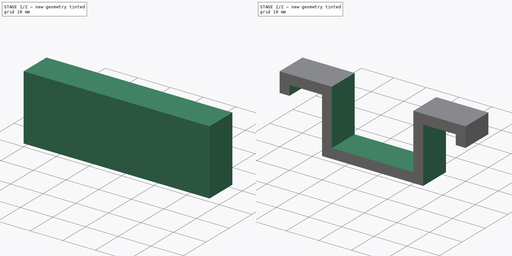
[diagram: build sequence overview — one tinted view per stage of 2, left to right]
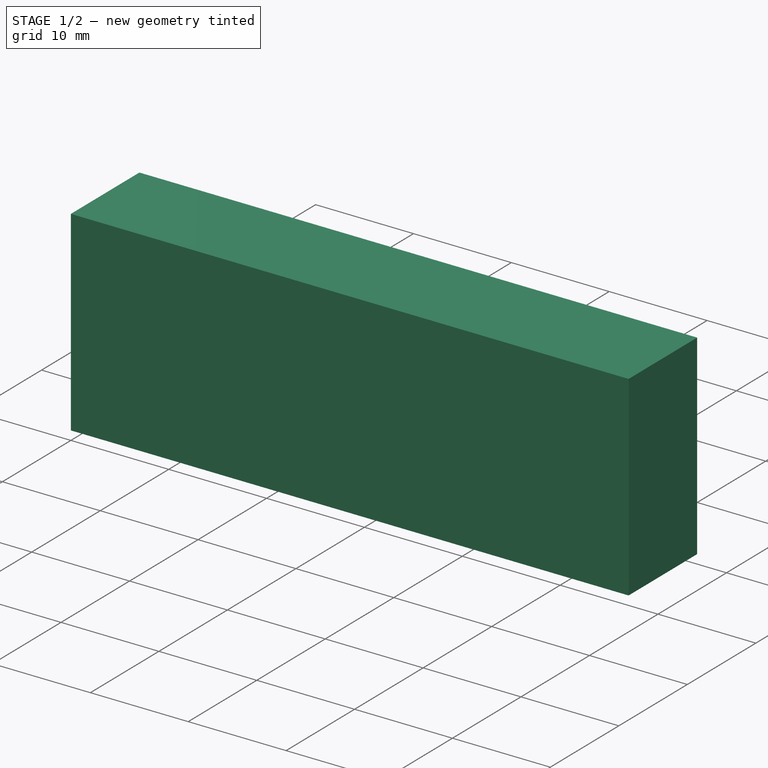
[diagram: stage 1 of 2 — iso view after this stage's code; geometry added in this stage tinted green]
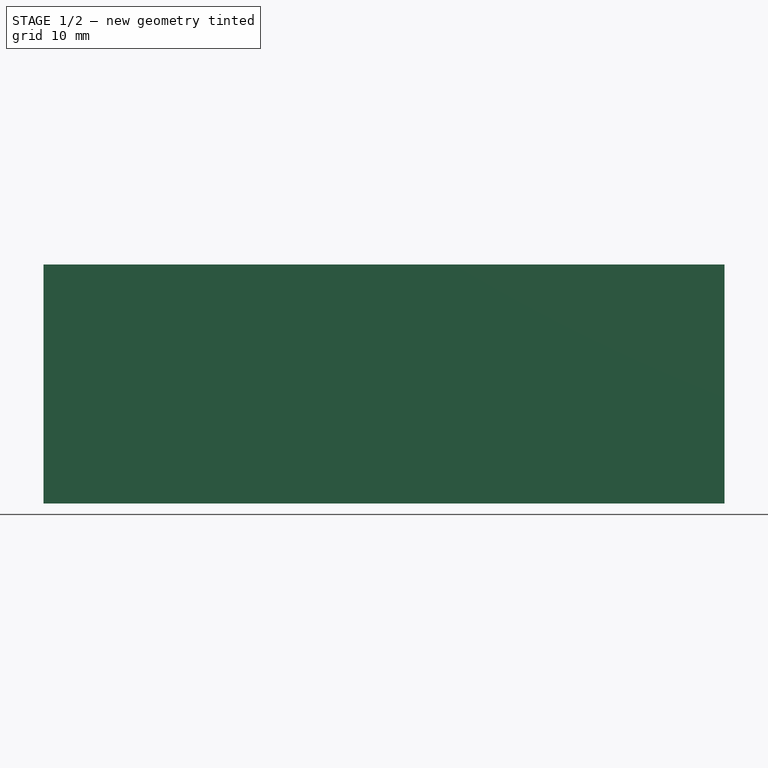
[diagram: stage 1 of 2 — front view after this stage's code; geometry added in this stage tinted green]
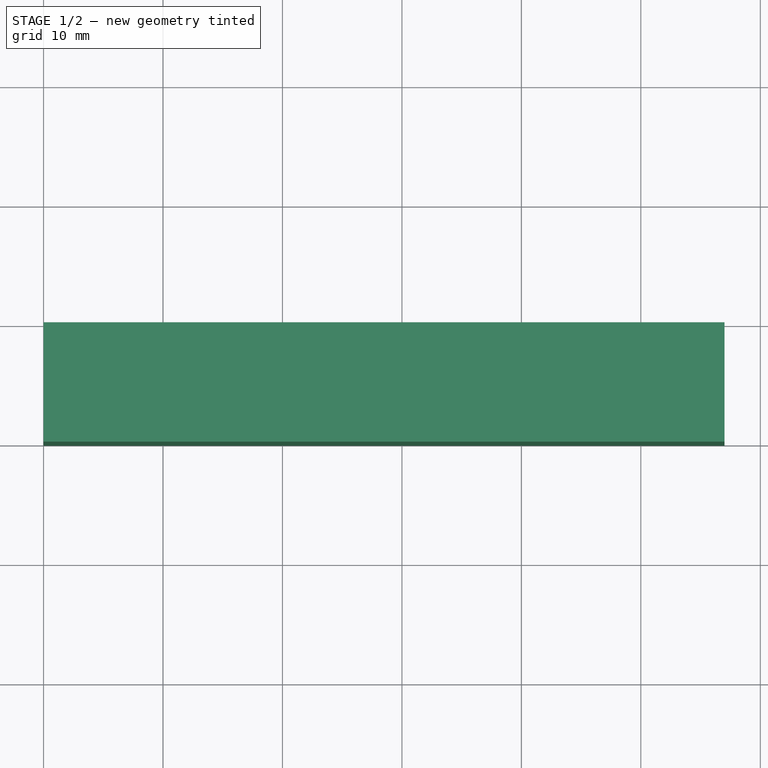
[diagram: stage 1 of 2 — top view after this stage's code; geometry added in this stage tinted green]
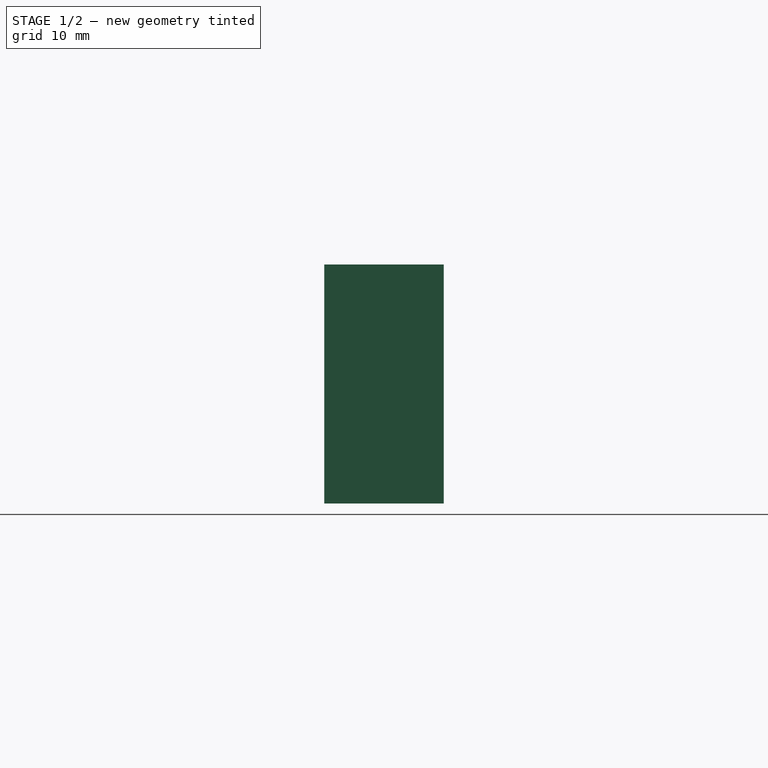
[diagram: stage 1 of 2 — right view after this stage's code; geometry added in this stage tinted green]
FCSTD DOCUMENT  (FreeCAD 1.0R39285 (Git))
Label: FuselageWingConnector
License: All rights reserved
LicenseURL: https://en.wikipedia.org/wiki/All_rights_reserved
objects: Sketcher::SketchObject×2, PartDesign::Pad×1, PartDesign::Pocket×1, PartDesign::Body×1
note: 11 computed .brp shape members not serialized (recipe doc carries the construction recipe); baked Part::Feature solids carry a one-line shape summary decoded from their .brp

FEATURE [Sketcher::SketchObject] Sketch
  ArcFitTolerance = 1e-06
  AttachmentSupport = -> [XZ_Plane]
  FullyConstrained = true
  MakeInternals = false
  MapMode = 5
  Placement = pos=(0,0,0) rot=(1,0,0;1.5708rad)
  sketch-geometry (4):
    g0: LineSegment StartX=0 StartY=0 StartZ=0 EndX=57 EndY=0 EndZ=0
    g1: LineSegment StartX=57 StartY=0 StartZ=0 EndX=57 EndY=20 EndZ=0
    g2: LineSegment StartX=57 StartY=20 StartZ=0 EndX=0 EndY=20 EndZ=0
    g3: LineSegment StartX=0 StartY=20 StartZ=0 EndX=0 EndY=0 EndZ=0
  constraints (11):
    c: Coincident(g0,g1)
    c: Coincident(g1,g2)
    c: Coincident(g2,g3)
    c: Coincident(g3,g0)
    c: Horizontal(g0)
    c: Horizontal(g2)
    c: Vertical(g1)
    c: Vertical(g3)
    c: Distance(g1,g3) = 57
    c: Distance(g0,g2) = 20
    c: Coincident(g0,g-1)
FEATURE [PartDesign::Pad] Pad
  Direction = (0,-1,2e-16)
  Length = 10
  Length2 = 10
  Placement = pos=(0,0,0) rot=(1,0,0;1.5708rad)
  Profile = -> Sketch
  ReferenceAxis = -> Sketch [N_Axis]
  Refine = true
  Suppressed = false
  Type = 0
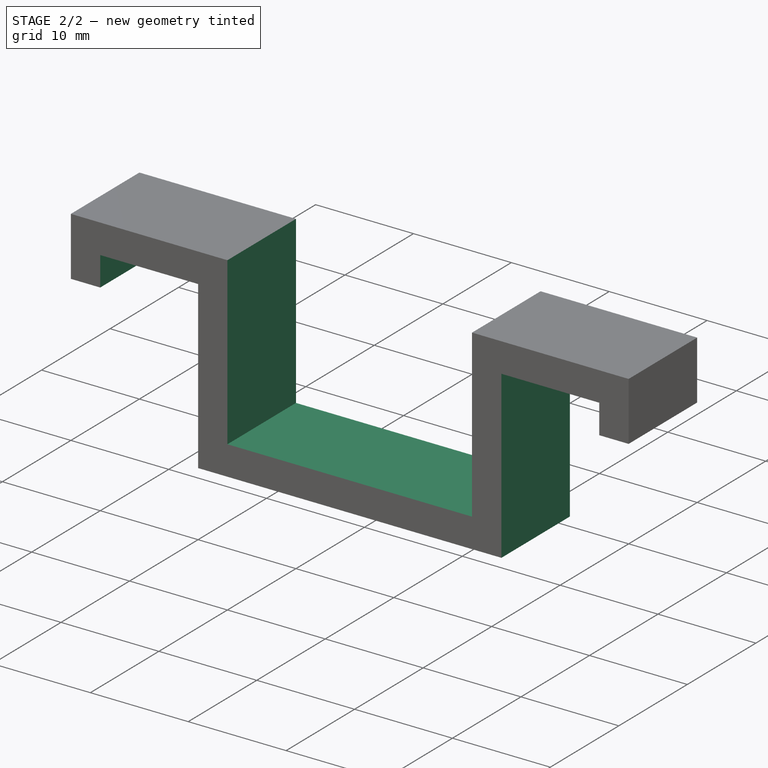
[diagram: stage 2 of 2 — iso view after this stage's code; geometry added in this stage tinted green]
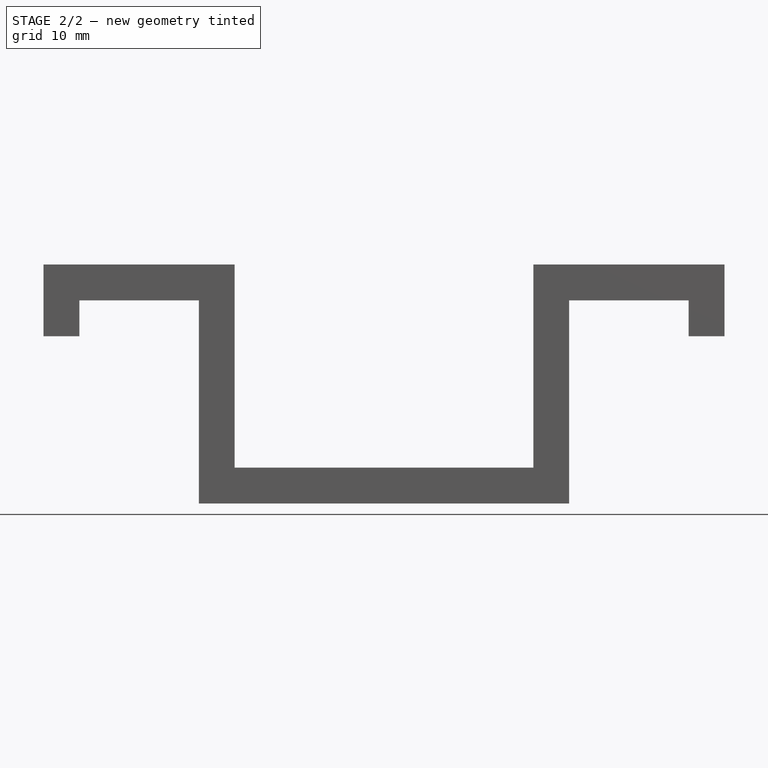
[diagram: stage 2 of 2 — front view after this stage's code; geometry added in this stage tinted green]
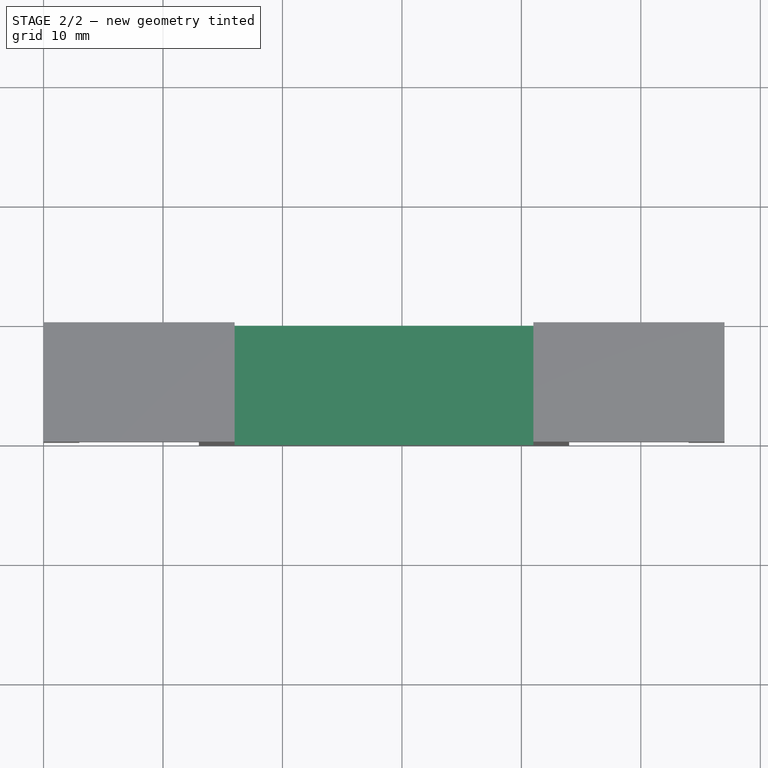
[diagram: stage 2 of 2 — top view after this stage's code; geometry added in this stage tinted green]
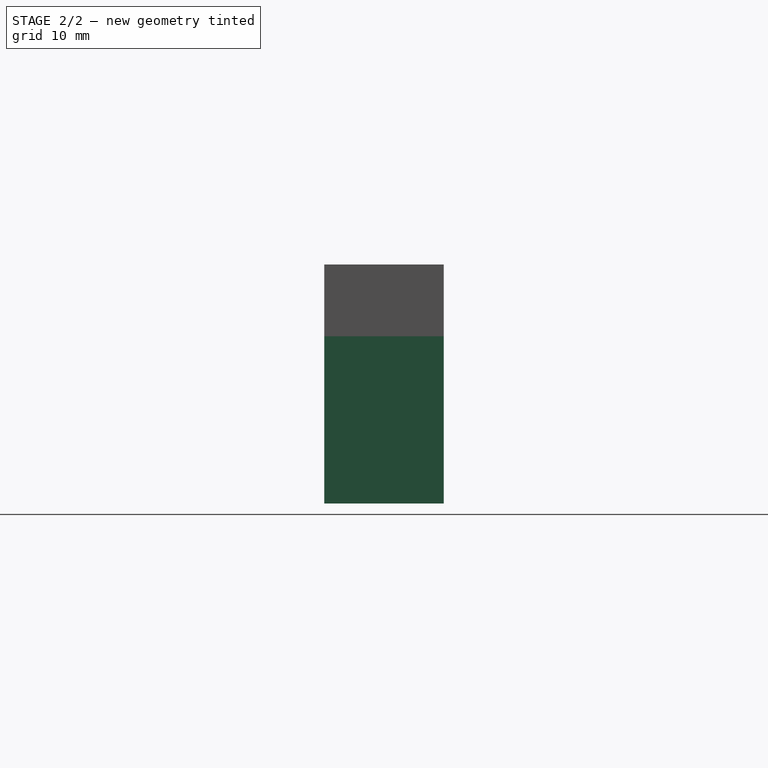
[diagram: stage 2 of 2 — right view after this stage's code; geometry added in this stage tinted green]
FEATURE [Sketcher::SketchObject] Sketch001
  ArcFitTolerance = 1e-06
  AttachmentSupport = -> [Pad]
  ExternalGeometry = -> [Pad]
  FullyConstrained = true
  MakeInternals = false
  MapMode = 5
  Placement = pos=(0,-10,0) rot=(1,0,0;1.5708rad)
  sketch-geometry (20):
    g0: LineSegment StartX=3 StartY=17 StartZ=0 EndX=3 EndY=3.6e-15 EndZ=0
    g1: LineSegment StartX=3 StartY=2.2e-15 StartZ=0 EndX=13 EndY=2.2e-15 EndZ=0
    g2: LineSegment StartX=13 StartY=2.2e-15 StartZ=0 EndX=13 EndY=17 EndZ=0
    g3: LineSegment StartX=13 StartY=17 StartZ=0 EndX=3 EndY=17 EndZ=0
    g4: LineSegment StartX=0 StartY=14 StartZ=0 EndX=0 EndY=1.8e-15 EndZ=0
    g5: LineSegment StartX=0 StartY=2.2e-15 StartZ=0 EndX=3 EndY=2.2e-15 EndZ=0
    g6: LineSegment StartX=3 StartY=2.2e-15 StartZ=0 EndX=3 EndY=14 EndZ=0
    g7: LineSegment StartX=3 StartY=14 StartZ=0 EndX=0 EndY=14 EndZ=0
    g8: LineSegment StartX=16 StartY=20 StartZ=0 EndX=16 EndY=3 EndZ=0
    g9: LineSegment StartX=16 StartY=3 StartZ=0 EndX=41 EndY=3 EndZ=0
    g10: LineSegment StartX=41 StartY=3 StartZ=0 EndX=41 EndY=20 EndZ=0
    g11: LineSegment StartX=41 StartY=20 StartZ=0 EndX=16 EndY=20 EndZ=0
    g12: LineSegment StartX=44 StartY=2.2e-15 StartZ=0 EndX=54 EndY=2.2e-15 EndZ=0
    g13: LineSegment StartX=54 StartY=2.2e-15 StartZ=0 EndX=54 EndY=17 EndZ=0
    g14: LineSegment StartX=54 StartY=17 StartZ=0 EndX=44 EndY=17 EndZ=0
    g15: LineSegment StartX=44 StartY=17 StartZ=0 EndX=44 EndY=3.6e-15 EndZ=0
    g16: LineSegment StartX=54 StartY=14 StartZ=0 EndX=54 EndY=3.6e-15 EndZ=0
    g17: LineSegment StartX=54 StartY=3.6e-15 StartZ=0 EndX=57 EndY=3.6e-15 EndZ=0
    g18: LineSegment StartX=57 StartY=3.6e-15 StartZ=0 EndX=57 EndY=14 EndZ=0
    g19: LineSegment StartX=57 StartY=14 StartZ=0 EndX=54 EndY=14 EndZ=0
  constraints (58):
    c: Coincident(g0,g1)
    c: Coincident(g1,g2)
    c: Coincident(g2,g3)
    c: Coincident(g3,g0)
    c: Vertical(g0)
    c: Vertical(g2)
    c: Horizontal(g1)
    c: Horizontal(g3)
    c: PointOnObject(g1,g-5)
    c: Distance(g1,g1) = 10
    c: Distance(g-6,g0) = 3
    c: Coincident(g4,g5)
    c: Coincident(g5,g6)
    c: Coincident(g6,g7)
    c: Coincident(g7,g4)
    c: Vertical(g4)
    c: Vertical(g6)
    c: Horizontal(g5)
    c: Horizontal(g7)
    c: PointOnObject(g4,g-6)
    c: Coincident(g5,g0)
    c: Coincident(g8,g9)
    c: Coincident(g9,g10)
    c: Coincident(g10,g11)
    c: Coincident(g11,g8)
    c: Vertical(g8)
    c: Vertical(g10)
    c: Horizontal(g9)
    c: Horizontal(g11)
    c: PointOnObject(g8,g-3)
    c: Distance(g-5,g9) = 3
    c: DistanceX(g9,g9) = 25
    c: Distance(g2,g8) = 3
    c: Coincident(g12,g13)
    c: Coincident(g13,g14)
    c: Coincident(g14,g15)
    c: Coincident(g15,g12)
    c: Horizontal(g12)
    c: Horizontal(g14)
    c: Vertical(g13)
    c: Vertical(g15)
    c: PointOnObject(g12,g-5)
    c: Distance(g10,g15) = 3
    c: Coincident(g16,g17)
    c: Coincident(g17,g18)
    c: Coincident(g18,g19)
    c: Coincident(g19,g16)
    c: Vertical(g16)
    c: Vertical(g18)
    c: Horizontal(g17)
    c: Horizontal(g19)
    c: PointOnObject(g16,g13)
    c: Coincident(g17,g-5)
    c: DistanceX(g19,g19) = 3
    c: Distance(g13,g19) = 3
    c: Distance(g-3,g3) = 3
    c: Distance(g0,g7) = 3
    c: Distance(g-3,g14) = 3
FEATURE [PartDesign::Pocket] Pocket
  BaseFeature = -> Pad
  Direction = (0,1,-2e-16)
  Length = 0
  Length2 = 5
  Placement = pos=(0,0,0) rot=(1,0,0;1.5708rad)
  Profile = -> Sketch001
  ReferenceAxis = -> Sketch001 [N_Axis]
  Refine = true
  Suppressed = false
  Type = 3
  UpToFace = -> Pad [Face5]
FEATURE [PartDesign::Body] Body
  AllowCompound = false
  Group = -> [Sketch,Pad,Sketch001,Pocket]
  Origin = -> Origin
  Tip = -> Pocket
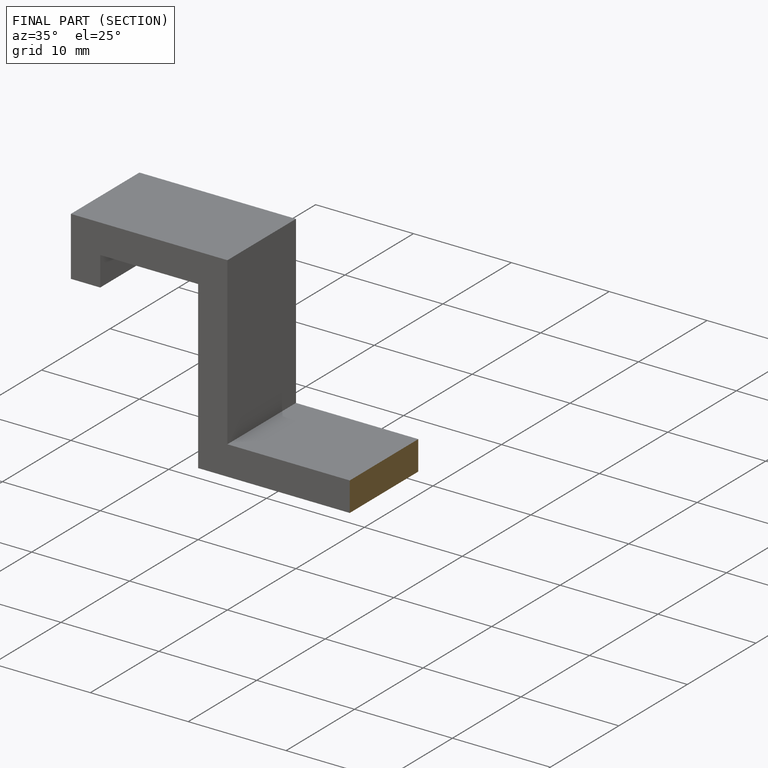
[diagram: finished part — half-section view (interior)]
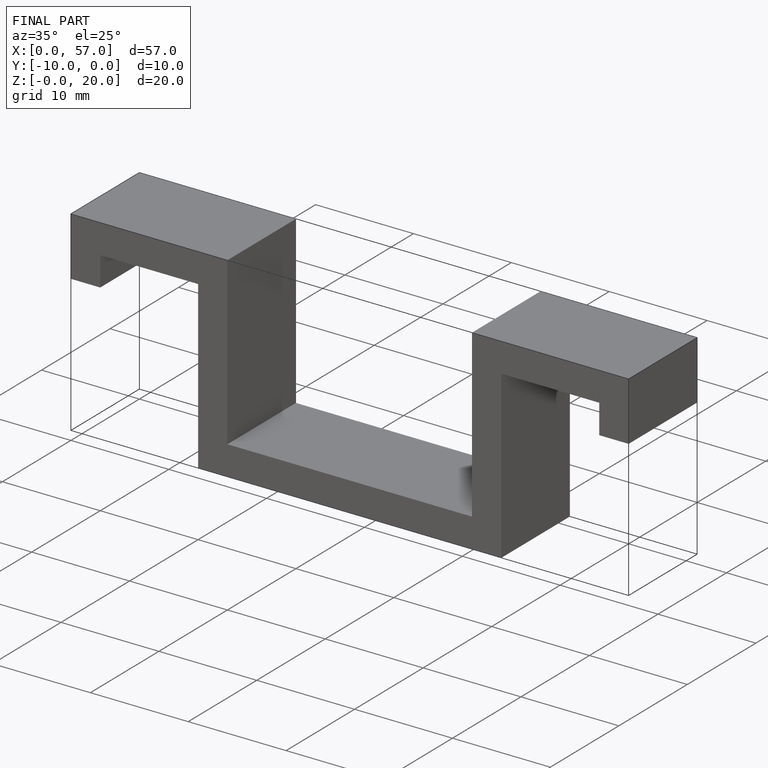
[diagram: finished part — iso view with bounding-box wireframe]
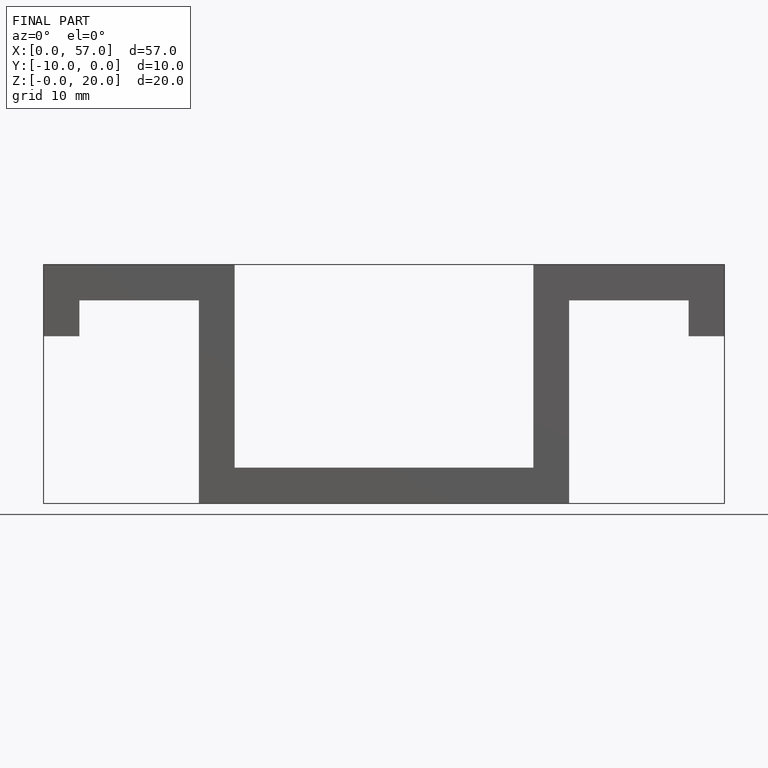
[diagram: finished part — front view with bounding-box wireframe]
